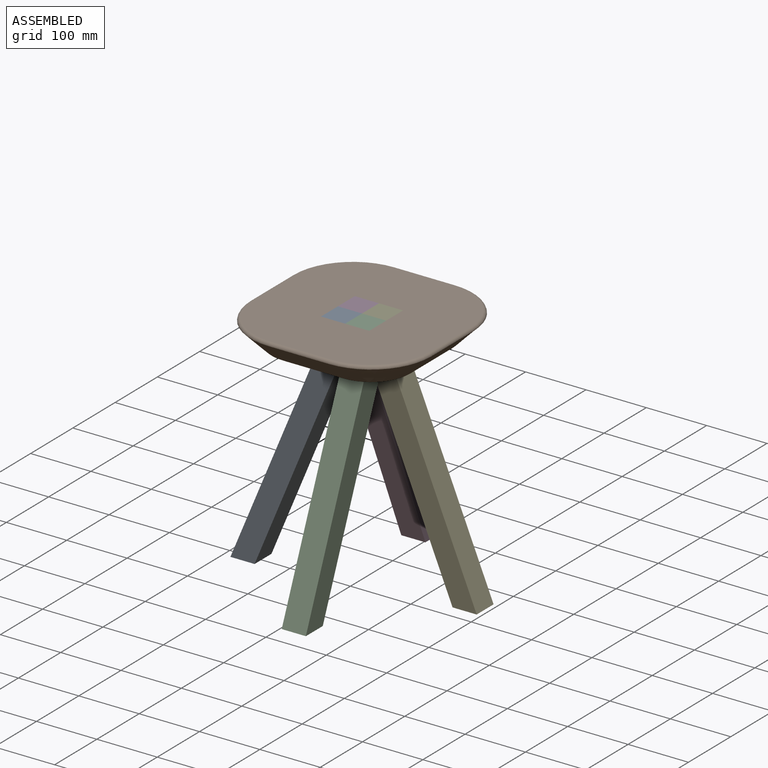
[diagram: assembled view]
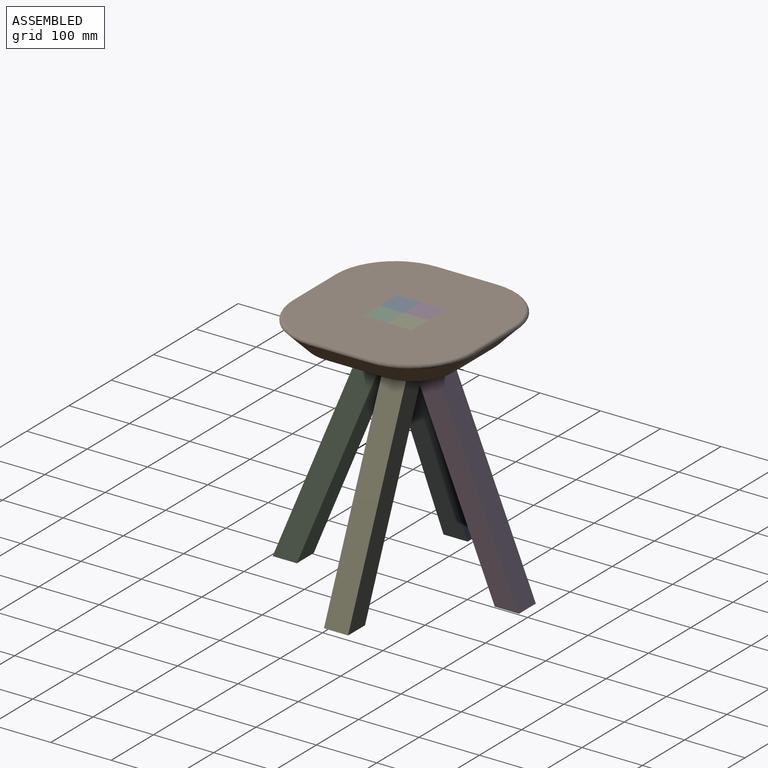
[diagram: assembled view, second angle]
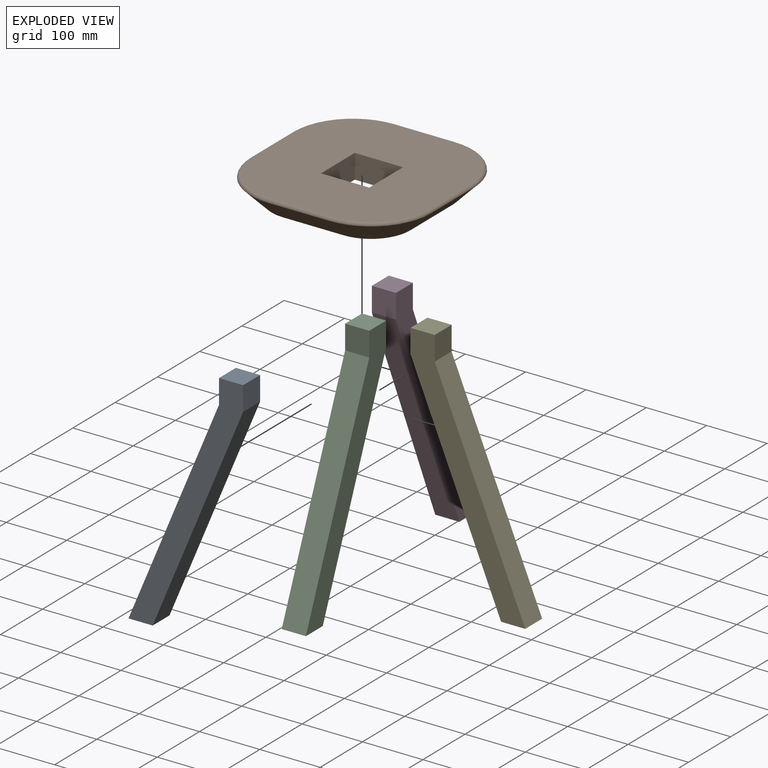
[diagram: exploded view]
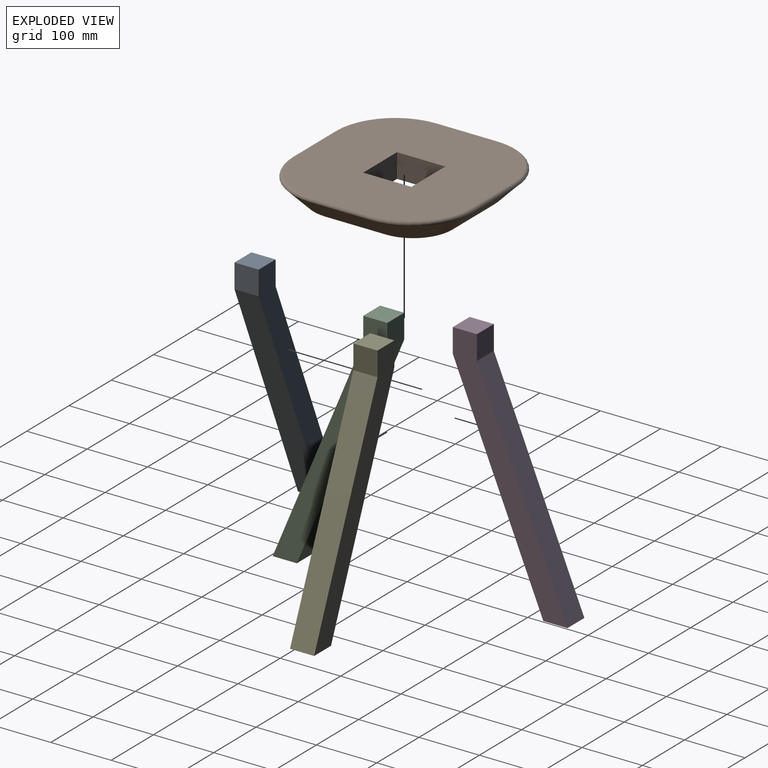
[diagram: exploded view, second angle]
ASSEMBLY  parts=5 mates=12
PART A: 8 faces, bbox 190x40x400 mm
  f0: plane 40x40mm, normal (0,0,1), area 1600mm2, adj f1,f5,f6,f7
  f1: plane 40x40mm, normal (-1,0,0), area 1600mm2, adj f0,f2,f6,f7
  f2: plane 360x150mm, normal (-0.92,0,-0.38), area 15600mm2, adj f1,f3,f6,f7
  f3: plane 40x40mm, normal (0,0,-1), area 1600mm2, adj f2,f4,f6,f7
  f4: plane 360x150mm, normal (0.92,0,0.38), area 15600mm2, adj f3,f5,f6,f7
  f5: plane 40x40mm, normal (1,0,0), area 1600mm2, adj f0,f4,f6,f7
  f6: plane 400x190mm, normal (0,-1,0), area 16000mm2, adj f0,f1,f2,f3,f4,f5
  f7: plane 400x190mm, normal (0,1,0), area 16000mm2, adj f0,f1,f2,f3,f4,f5
PART B: 22 faces, bbox 316.5x316.5x40 mm
  f0: plane 80x40mm, normal (-1,0,0), area 3200mm2, adj f1,f3,f4,f5
  f1: plane 80x40mm, normal (0,1,0), area 3200mm2, adj f0,f2,f4,f5
  f2: plane 80x40mm, normal (1,0,0), area 3200mm2, adj f1,f3,f4,f5
  f3: plane 80x40mm, normal (0,-1,0), area 3200mm2, adj f0,f2,f4,f5
  f4: plane 290x290mm, normal (0,0,1), area 69952.9mm2, adj f0,f1,f2,f3,f6,f7,f8,f9
  f5: plane 230x230mm, normal (0,0,-1), area 42873.2mm2, adj f0,f1,f2,f3,f14,f15,f16,f17
  f6: torus R=95mm, axis (0,0,1), area 1211.3mm2, adj f4,f7,f8,f16
  f7: cylinder r=5mm len=100mm, axis (1,0,0), area 785.4mm2, adj f4,f6,f9,f14
  f8: cylinder r=5mm len=100mm, axis (0,-1,0), area 785.4mm2, adj f4,f6,f10,f18
  f9: torus R=95mm, axis (0,0,1), area 1211.3mm2, adj f4,f7,f11,f15
  f10: torus R=95mm, axis (0,0,1), area 1211.3mm2, adj f4,f8,f12,f20
  f11: cylinder r=5mm len=100mm, axis (0,1,0), area 785.4mm2, adj f4,f9,f13,f17
  f12: cylinder r=5mm len=100mm, axis (-1,0,0), area 785.4mm2, adj f4,f10,f13,f21
  f13: torus R=95mm, axis (0,0,1), area 1211.3mm2, adj f4,f11,f12,f19
  f14: plane 100x35mm, normal (0,0.71,-0.71), area 4949.7mm2, adj f5,f7,f15,f16
  f15: cone r=65mm half-angle=45deg, axis (0,0,1), area 6414.4mm2, adj f5,f9,f14,f17
  f16: cone r=65mm half-angle=45deg, axis (0,0,1), area 6414.4mm2, adj f5,f6,f14,f18
  f17: plane 100x35mm, normal (-0.71,0,-0.71), area 4949.7mm2, adj f5,f11,f15,f19
  f18: plane 100x35mm, normal (0.71,0,-0.71), area 4949.7mm2, adj f5,f8,f16,f20
  f19: cone r=65mm half-angle=45deg, axis (0,0,1), area 6414.4mm2, adj f5,f13,f17,f21
  f20: cone r=65mm half-angle=45deg, axis (0,0,1), area 6414.4mm2, adj f5,f10,f18,f21
  f21: plane 100x35mm, normal (0,-0.71,-0.71), area 4949.7mm2, adj f5,f12,f19,f20
PART C: same geometry as A
PART D: same geometry as A
PART E: same geometry as A
PLACE A rot(axis=(0,0,-1),180deg) t=(-85,-34,185)mm
PLACE B t=(-85,6,185)mm
PLACE C rot(axis=(0,0,-1),90deg) t=(-45,6,185)mm
PLACE D rot(axis=(0,0,1),90deg) t=(-125,6,185)mm
PLACE E t=(-85,46,185)mm
MATE planar D.f1 <-> A.f6  axis (0,-1,0) through (-105,6,205)mm
MATE planar B.f4 <-> A.f0  axis (0,0,1) through (-85,6,225)mm
MATE planar C.f1 <-> E.f6  axis (0,1,0) through (-65,6,205)mm
MATE planar C.f5 <-> B.f1  axis (0,-1,0) through (-65,-34,205)mm
MATE planar C.f5 <-> A.f7  axis (0,-1,0) through (-65,-34,205)mm
MATE planar A.f5 <-> B.f2  axis (-1,0,0) through (-125,-14,205)mm
MATE planar E.f0 <-> C.f0  axis (0,0,1) through (-65,26,225)mm
MATE planar D.f0 <-> A.f0  axis (0,0,1) through (-105,26,225)mm
MATE planar A.f1 <-> C.f6  axis (1,0,0) through (-85,-14,205)mm
MATE planar A.f0 <-> C.f0  axis (0,0,1) through (-105,-14,225)mm
MATE planar C.f6 <-> E.f1  axis (-1,0,0) through (-85,-81.5,25)mm
MATE planar D.f6 <-> E.f1  axis (1,0,0) through (-85,6,205)mm
